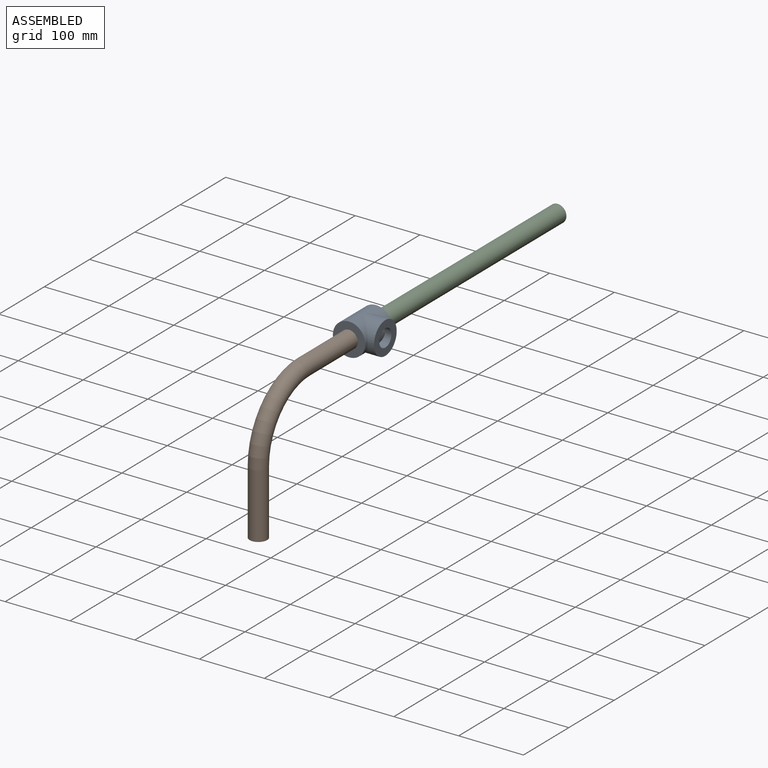
[diagram: assembled view]
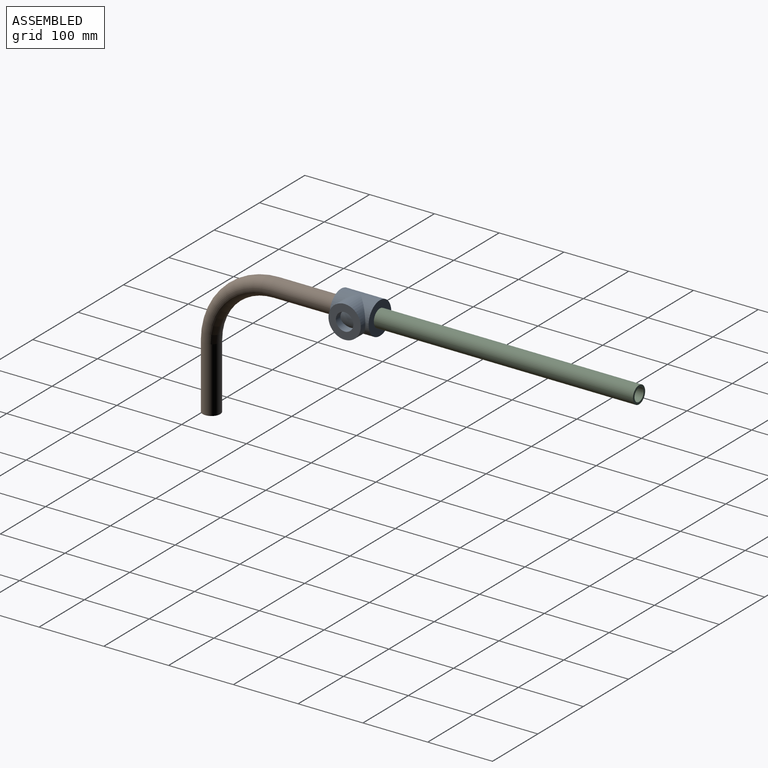
[diagram: assembled view, second angle]
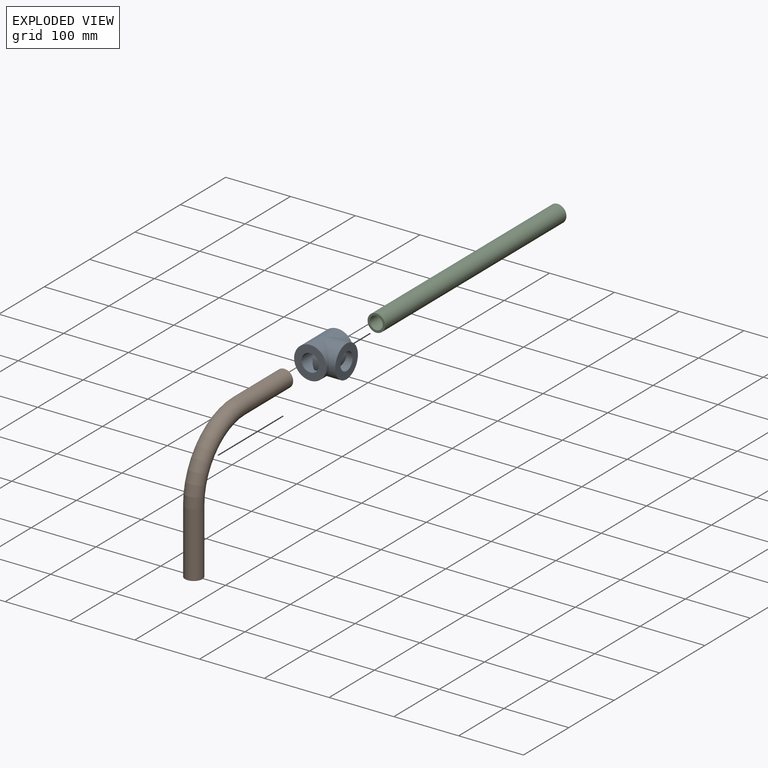
[diagram: exploded view]
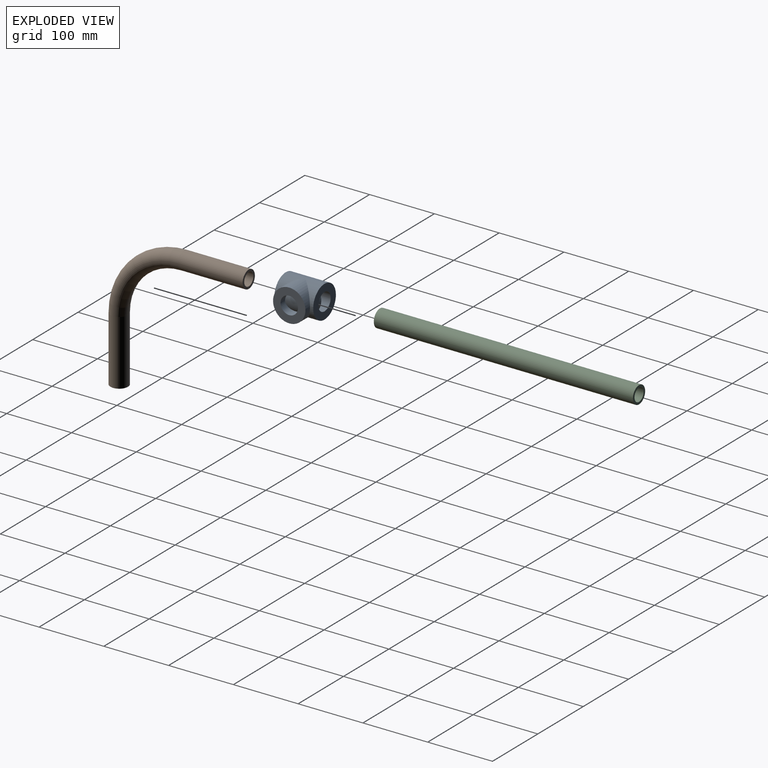
[diagram: exploded view, second angle]
ASSEMBLY  parts=3 mates=2
PART A: 15 faces, bbox 60x60x50 mm
  f0: cylinder r=13.5mm len=60mm, axis (0,1,0), area 3133.1mm2, adj f2,f3,f8,f9,f12,f13
  f1: cylinder r=25mm len=60mm, axis (0,1,0), area 6924.8mm2, adj f2,f3,f5
  f2: plane 50x50mm, normal (0,-1,0), area 1390.9mm2, adj f0,f1
  f3: plane 50x50mm, normal (0,1,0), area 1390.9mm2, adj f0,f1
  f4: plane 50x50mm, normal (1,0,0), area 1390.9mm2, adj f5,f6
  f5: cylinder r=25mm len=50mm, axis (-1,0,0), area 2997.8mm2, adj f1,f4
  f6: cylinder r=13.5mm len=27mm, axis (-1,0,0), area 1012.6mm2, adj f4,f7
  f7: cylinder r=25mm len=27mm, axis (0,1,0), area 595.7mm2, adj f6
  f8: plane 27x25mm, normal (-1,0,0), area 354.3mm2, adj f0,f9,f10
  f9: cylinder r=25mm len=27mm, axis (-1,0,0), area 298.1mm2, adj f0,f8
  f10: cylinder r=13.5mm len=27mm, axis (-1,0,0), area 364.5mm2, adj f8,f14
  f11: cylinder r=13.5mm len=27mm, axis (-1,0,0), area 364.5mm2, adj f13,f14
  f12: cylinder r=25mm len=27mm, axis (-1,0,0), area 298.1mm2, adj f0,f13
  f13: plane 27x25mm, normal (-1,0,0), area 354.3mm2, adj f0,f11,f12
  f14: cylinder r=13.5mm len=27.09mm, axis (0,1,0), area 729mm2, adj f10,f11
PART B: 8 faces, bbox 222.9x27x222.9 mm
  f0: cylinder r=10mm len=100mm, axis (0,0,1), area 6283.2mm2, adj f1,f3
  f1: torus R=100mm, axis (0,1,0), area 9869.6mm2, adj f0,f2
  f2: cylinder r=10mm len=100mm, axis (1,0,0), area 6283.2mm2, adj f1,f4
  f3: plane 27x27mm, normal (0,0,-1), area 258.4mm2, adj f0,f5
  f4: plane 27x27mm, normal (1,0,0), area 258.4mm2, adj f2,f7
  f5: cylinder r=13.5mm len=100mm, axis (0,0,1), area 8482.3mm2, adj f3,f6
  f6: torus R=100mm, axis (0,1,0), area 13324mm2, adj f5,f7
  f7: cylinder r=13.5mm len=100mm, axis (1,0,0), area 8482.3mm2, adj f4,f6
PART C: 4 faces, bbox 27x400x27 mm
  f0: cylinder r=10mm len=400mm, axis (0,1,0), area 25132.7mm2, adj f2,f3
  f1: cylinder r=13.5mm len=400mm, axis (0,1,0), area 33929.2mm2, adj f2,f3
  f2: plane 27x27mm, normal (0,-1,0), area 258.4mm2, adj f0,f1
  f3: plane 27x27mm, normal (0,1,0), area 258.4mm2, adj f0,f1
PLACE A rot(axis=(0.56,-0.25,-0.79),0deg) t=(-134.63,181.91,552.98)mm
PLACE B rot(axis=(0,0,1),90deg) t=(-134.63,-78.09,352.98)mm
PLACE C rot(axis=(-1,0,0),180deg) t=(-134.63,181.91,552.98)mm
MATE fastened C.f1 <-> A.f0  axis (0,-1,0) through (-134.63,181.91,552.98)mm
MATE fastened B.f7 <-> A.f1  axis (0,1,0) through (-134.63,121.91,552.98)mm
